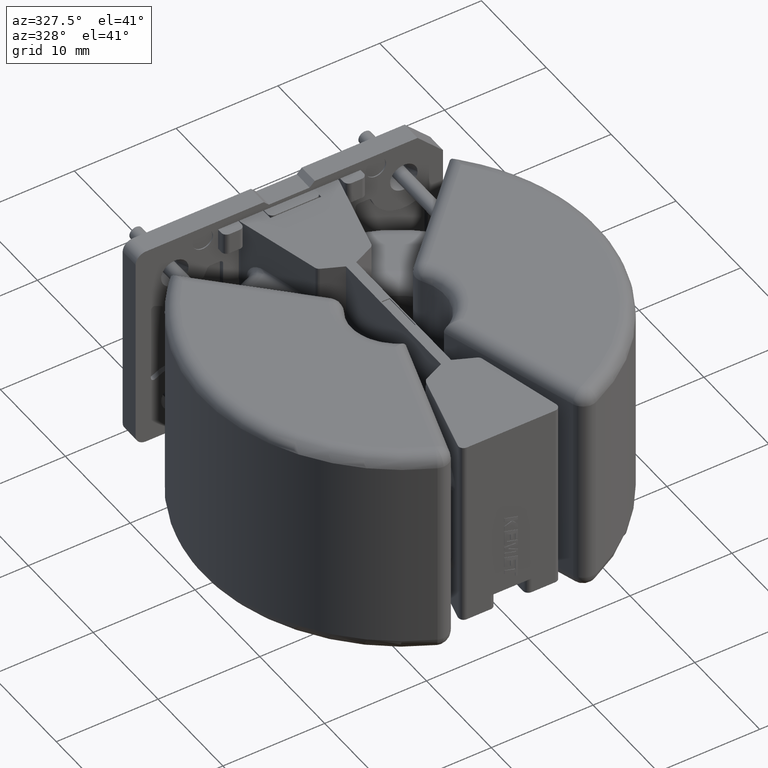
[diagram: clean part render]
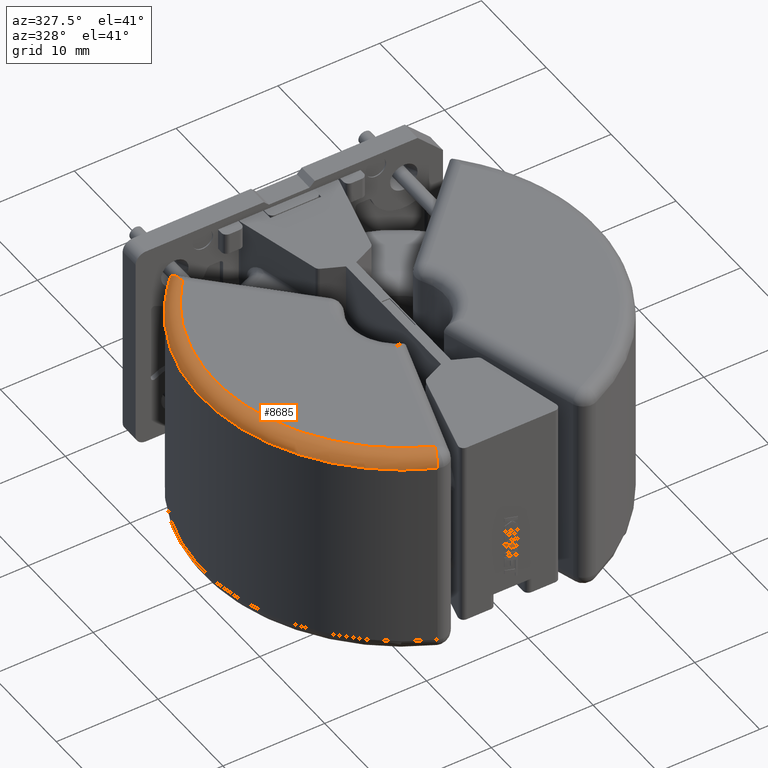
[diagram: same view with one face highlighted and labeled with its STEP entity id]
A machine part, auxiliary view. The second image highlights one B-rep face of the part: STEP entity #8685.
In plain terms, the highlighted toroidal blend (fillet) surface has major radius 18.4205 mm and minor (blend) radius 1.3 mm.
Its self-contained STEP definition (entity closure, byte-faithful):
#117 = EDGE_CURVE ( 'NONE', #22380, #7991, #20569, .T. ) ;
#1577 = CARTESIAN_POINT ( 'NONE',  ( -7.268498226019342034, -17.04999999999999716, 14.52500000000000391 ) ) ;
#1982 = DIRECTION ( 'NONE',  ( -0.4065591750611113331, -0.9136244508405126918, 0.000000000000000000 ) ) ;
#2059 = DIRECTION ( 'NONE',  ( -6.442710090731450671E-17, 6.938893903907229610E-17, 1.000000000000000000 ) ) ;
#2812 = VERTEX_POINT ( 'NONE', #20462 ) ;
#3282 = CARTESIAN_POINT ( 'NONE',  ( -13.72407177528604905, 13.64827719374884119, 14.94114565870517097 ) ) ;
#3428 = CARTESIAN_POINT ( 'NONE',  ( -13.72215369802573015, 13.23775736665277947, 15.41962770897212387 ) ) ;
#3638 = TOROIDAL_SURFACE ( 'NONE', #24850, 18.42054222526122942, 1.300000000000000044 ) ;
#3875 = DIRECTION ( 'NONE',  ( 1.594371120374360605E-16, -1.000000000000000000, 6.938893903907230843E-17 ) ) ;
#4184 = DIRECTION ( 'NONE',  ( 1.594371120374360605E-16, -1.000000000000000000, 8.796530319306816750E-17 ) ) ;
#5528 = FACE_OUTER_BOUND ( 'NONE', #11104, .T. ) ;
#6038 = CARTESIAN_POINT ( 'NONE',  ( -13.72398691089654577, 13.72398691089668965, 14.73738759265809684 ) ) ;
#6706 = CARTESIAN_POINT ( 'NONE',  ( 0.2205422252612282141, -0.2205422252612322664, 15.82499999999999218 ) ) ;
#6989 = DIRECTION ( 'NONE',  ( 1.589174645302466328E-16, -1.000000000000000000, 0.000000000000000000 ) ) ;
#7963 = CARTESIAN_POINT ( 'NONE',  ( -13.69150952421956724, 11.85303189313467875, 15.82499999999999218 ) ) ;
#7991 = VERTEX_POINT ( 'NONE', #24489 ) ;
#8242 = AXIS2_PLACEMENT_3D ( 'NONE', #25163, #14646, #4184 ) ;
#8650 = AXIS2_PLACEMENT_3D ( 'NONE', #6706, #21347, #6989 ) ;
#8685 = ADVANCED_FACE ( 'NONE', ( #5528 ), #3638, .T. ) ;
#9907 = CARTESIAN_POINT ( 'NONE',  ( -13.71773282713651732, 12.87503285726764268, 15.63014263581090368 ) ) ;
#10044 = CARTESIAN_POINT ( 'NONE',  ( -13.69886472525904431, 12.06163701522262066, 15.82499999999999218 ) ) ;
#10940 = CIRCLE ( 'NONE', #8242, 19.72054222526122658 ) ;
#11104 = EDGE_LOOP ( 'NONE', ( #11189, #21051, #23663, #22648 ) ) ;
#11189 = ORIENTED_EDGE ( 'NONE', *, *, #23325, .T. ) ;
#11686 = CARTESIAN_POINT ( 'NONE',  ( -13.72319308960892670, 13.40269070973104171, 15.28300959374009338 ) ) ;
#11961 = CARTESIAN_POINT ( 'NONE',  ( -13.72398691089654754, 13.72398691089668965, 14.52499999999997726 ) ) ;
#13959 = EDGE_CURVE ( 'NONE', #16179, #2812, #10940, .T. ) ;
#14345 = CARTESIAN_POINT ( 'NONE',  ( 0.2205422252612282974, -0.2205422252612323775, 14.52499999999999147 ) ) ;
#14646 = DIRECTION ( 'NONE',  ( 6.442710090731450671E-17, -6.938893903907229610E-17, -1.000000000000000000 ) ) ;
#15759 = B_SPLINE_CURVE_WITH_KNOTS ( 'NONE', 3,
 ( #11961, #6038, #3282, #11686, #3428, #9907, #24388, #20129, #10044, #7963 ),
 .UNSPECIFIED., .F., .F.,
 ( 4, 2, 2, 2, 4 ),
 ( 0.000000000000000000, 0.0006262037290238138456, 0.001252407458047627691, 0.001878611187071441537, 0.002504814916095255382 ),
 .UNSPECIFIED. ) ;
#16179 = VERTEX_POINT ( 'NONE', #26596 ) ;
#16349 = AXIS2_PLACEMENT_3D ( 'NONE', #1577, #16715, #1982 ) ;
#16715 = DIRECTION ( 'NONE',  ( -0.9136244508405128029, 0.4065591750611117772, 7.297231969730940343E-16 ) ) ;
#20129 = CARTESIAN_POINT ( 'NONE',  ( -13.70495025448631310, 12.27082358159717401, 15.80194275678517180 ) ) ;
#20462 = CARTESIAN_POINT ( 'NONE',  ( -13.72398691089654754, 13.72398691089668965, 14.52499999999997726 ) ) ;
#20503 = EDGE_CURVE ( 'NONE', #2812, #22380, #15759, .T. ) ;
#20569 = CIRCLE ( 'NONE', #8650, 18.42054222526122942 ) ;
#21051 = ORIENTED_EDGE ( 'NONE', *, *, #117, .F. ) ;
#21347 = DIRECTION ( 'NONE',  ( -6.442710090731450671E-17, 6.938893903907229610E-17, 1.000000000000000000 ) ) ;
#22258 = CARTESIAN_POINT ( 'NONE',  ( -13.69150952421956724, 11.85303189313467875, 15.82499999999999218 ) ) ;
#22380 = VERTEX_POINT ( 'NONE', #22258 ) ;
#22648 = ORIENTED_EDGE ( 'NONE', *, *, #13959, .F. ) ;
#23325 = EDGE_CURVE ( 'NONE', #16179, #7991, #25633, .T. ) ;
#23663 = ORIENTED_EDGE ( 'NONE', *, *, #20503, .F. ) ;
#24388 = CARTESIAN_POINT ( 'NONE',  ( -13.71441973234953871, 12.67951731675493221, 15.70375616194694146 ) ) ;
#24489 = CARTESIAN_POINT ( 'NONE',  ( -7.268498226019342923, -17.05000000000000071, 15.82499999999999218 ) ) ;
#24850 = AXIS2_PLACEMENT_3D ( 'NONE', #14345, #2059, #3875 ) ;
#25163 = CARTESIAN_POINT ( 'NONE',  ( 0.2205422252612282974, -0.2205422252612323775, 14.52499999999999147 ) ) ;
#25633 = CIRCLE ( 'NONE', #16349, 1.300000000000001155 ) ;
#26596 = CARTESIAN_POINT ( 'NONE',  ( -7.797025153598787561, -18.23771178609266386, 14.52500000000000391 ) ) ;